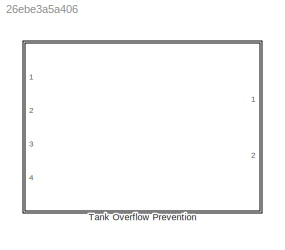
MODEL slx_26ebe3a5a406
KIND model
CONFIG AbsTol = auto
CONFIG EnableMultiTasking = on
CONFIG FixedStep = 0.002
CONFIG MaxStep = auto
CONFIG MinStep = auto
CONFIG RelTol = 1e-3
CONFIG SampleTimeConstraint = Unconstrained
CONFIG Solver = FixedStepAuto
CONFIG SolverName = FixedStepAuto
CONFIG StartTime = 0.0
CONFIG StopTime = inf
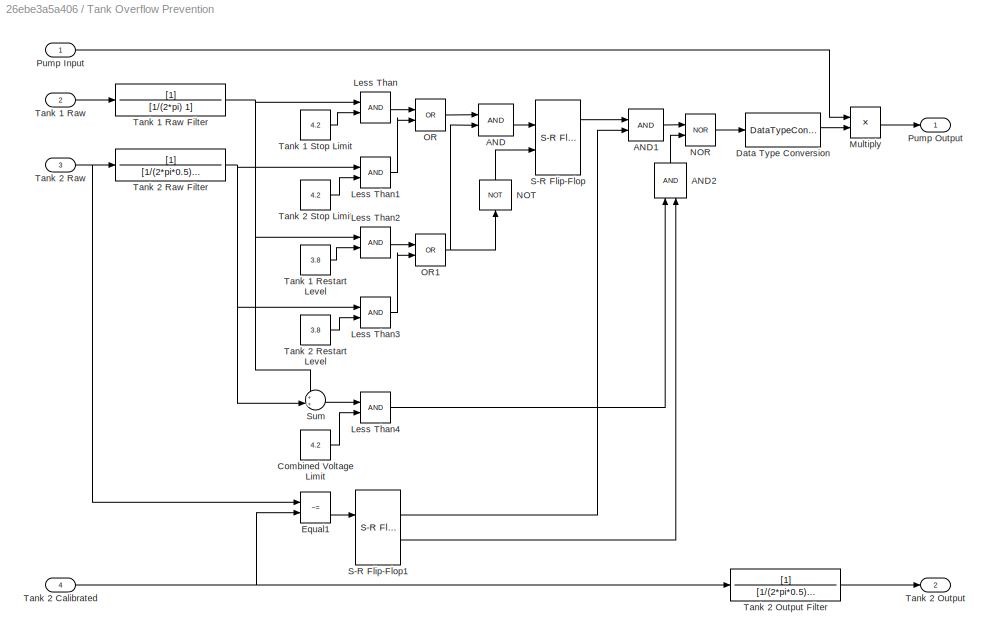
BLOCK [SubSystem] Tank Overflow Prevention
  Permissions = ReadOnly
  Ports = [4, 2]
  RequestExecContextInheritance = off
BLOCK [Logic] Tank Overflow Prevention/AND
  AllPortsSameDT = off
  IconShape = distinctive
  OutDataTypeStr = boolean
  Ports = [2, 1]
BLOCK [Logic] Tank Overflow Prevention/AND1
  AllPortsSameDT = off
  IconShape = distinctive
  OutDataTypeStr = boolean
  Ports = [2, 1]
BLOCK [Logic] Tank Overflow Prevention/AND2
  AllPortsSameDT = off
  IconShape = distinctive
  NameLocation = right
  OutDataTypeStr = boolean
  Ports = [2, 1]
BLOCK [Constant] Tank Overflow Prevention/Combined Voltage Limit
  Value = 4.2
BLOCK [DataTypeConversion] Tank Overflow Prevention/Data Type Conversion
  OutMax = [1]
  OutMin = [0]
  RndMeth = Floor
  SaturateOnIntegerOverflow = off
BLOCK [RelationalOperator] Tank Overflow Prevention/Equal1
  InputSameDT = off
  Operator = ~=
  OutDataTypeStr = boolean
  Ports = [2, 1]
  RndMeth = Simplest
BLOCK [RelationalOperator] Tank Overflow Prevention/Less Than
  InputSameDT = off
  Ports = [2, 1]
  RndMeth = Simplest
BLOCK [RelationalOperator] Tank Overflow Prevention/Less Than1
  InputSameDT = off
  Ports = [2, 1]
  RndMeth = Simplest
BLOCK [RelationalOperator] Tank Overflow Prevention/Less Than2
  InputSameDT = off
  Ports = [2, 1]
  RndMeth = Simplest
BLOCK [RelationalOperator] Tank Overflow Prevention/Less Than3
  InputSameDT = off
  Ports = [2, 1]
  RndMeth = Simplest
BLOCK [RelationalOperator] Tank Overflow Prevention/Less Than4
  InputSameDT = off
  Ports = [2, 1]
  RndMeth = Simplest
BLOCK [Product] Tank Overflow Prevention/Multiply
  Ports = [2, 1]
BLOCK [Logic] Tank Overflow Prevention/NOR
  AllPortsSameDT = off
  IconShape = distinctive
  Operator = NOR
  OutDataTypeStr = boolean
  Ports = [2, 1]
BLOCK [Logic] Tank Overflow Prevention/NOT
  AllPortsSameDT = off
  IconShape = distinctive
  NameLocation = right
  Operator = NOT
  OutDataTypeStr = boolean
  Ports = [1, 1]
BLOCK [Logic] Tank Overflow Prevention/OR
  AllPortsSameDT = off
  IconShape = distinctive
  Operator = OR
  OutDataTypeStr = boolean
  Ports = [2, 1]
BLOCK [Logic] Tank Overflow Prevention/OR1
  AllPortsSameDT = off
  IconShape = distinctive
  Operator = OR
  OutDataTypeStr = boolean
  Ports = [2, 1]
BLOCK [Inport] Tank Overflow Prevention/Pump Input
BLOCK [Outport] Tank Overflow Prevention/Pump Output
  VectorParamsAs1DForOutWhenUnconnected = off
BLOCK [Reference] Tank Overflow Prevention/S-R Flip-Flop  REF=simulink_extras/Flip Flops/S-R
Flip-Flop
  Ports = [2, 2]
  SourceBlock = simulink_extras/Flip Flops/S-R\nFlip-Flop
  SourceProductBaseCode = SL
  SourceType = SRFlipFlop
BLOCK [Reference] Tank Overflow Prevention/S-R Flip-Flop1  REF=simulink_extras/Flip Flops/S-R
Flip-Flop
  Ports = [2, 2]
  SourceBlock = simulink_extras/Flip Flops/S-R\nFlip-Flop
  SourceProductBaseCode = SL
  SourceType = SRFlipFlop
BLOCK [Sum] Tank Overflow Prevention/Sum
  Inputs = ++|
  Ports = [2, 1]
BLOCK [Inport] Tank Overflow Prevention/Tank 1 Raw
  Port = 2
BLOCK [TransferFcn] Tank Overflow Prevention/Tank 1 Raw Filter
  Denominator = [1/(2*pi) 1]
BLOCK [Constant] Tank Overflow Prevention/Tank 1 Restart Level
  Value = 3.8
BLOCK [Constant] Tank Overflow Prevention/Tank 1 Stop Limit
  Value = 4.2
BLOCK [Inport] Tank Overflow Prevention/Tank 2 Calibrated
  Port = 4
BLOCK [Outport] Tank Overflow Prevention/Tank 2 Output
  Port = 2
  VectorParamsAs1DForOutWhenUnconnected = off
BLOCK [TransferFcn] Tank Overflow Prevention/Tank 2 Output Filter
  Denominator = [1/(2*pi*0.5) 1]
BLOCK [Inport] Tank Overflow Prevention/Tank 2 Raw
  Port = 3
BLOCK [TransferFcn] Tank Overflow Prevention/Tank 2 Raw Filter
  Denominator = [1/(2*pi*0.5) 1]
BLOCK [Constant] Tank Overflow Prevention/Tank 2 Restart Level
  Value = 3.8
BLOCK [Constant] Tank Overflow Prevention/Tank 2 Stop Limit
  Value = 4.2
LINE Tank Overflow Prevention/AND1:1 -> Tank Overflow Prevention/NOR:1
LINE Tank Overflow Prevention/AND2:1 -> Tank Overflow Prevention/NOR:2
LINE Tank Overflow Prevention/AND:1 -> Tank Overflow Prevention/S-R Flip-Flop:1
LINE Tank Overflow Prevention/Combined Voltage Limit:1 -> Tank Overflow Prevention/Less Than4:2
LINE Tank Overflow Prevention/Data Type Conversion:1 -> Tank Overflow Prevention/Multiply:2
LINE Tank Overflow Prevention/Equal1:1 -> Tank Overflow Prevention/S-R Flip-Flop1:1
LINE Tank Overflow Prevention/Less Than1:1 -> Tank Overflow Prevention/OR:2
LINE Tank Overflow Prevention/Less Than2:1 -> Tank Overflow Prevention/OR1:1
LINE Tank Overflow Prevention/Less Than3:1 -> Tank Overflow Prevention/OR1:2
LINE Tank Overflow Prevention/Less Than4:1 -> Tank Overflow Prevention/AND2:1
LINE Tank Overflow Prevention/Less Than:1 -> Tank Overflow Prevention/OR:1
LINE Tank Overflow Prevention/Multiply:1 -> Tank Overflow Prevention/Pump Output:1
LINE Tank Overflow Prevention/NOR:1 -> Tank Overflow Prevention/Data Type Conversion:1
LINE Tank Overflow Prevention/NOT:1 -> Tank Overflow Prevention/S-R Flip-Flop:2
NET Tank Overflow Prevention/OR1:1 -> Tank Overflow Prevention/AND:2, Tank Overflow Prevention/NOT:1
LINE Tank Overflow Prevention/OR:1 -> Tank Overflow Prevention/AND:1
LINE Tank Overflow Prevention/Pump Input:1 -> Tank Overflow Prevention/Multiply:1
LINE Tank Overflow Prevention/S-R Flip-Flop1:1 -> Tank Overflow Prevention/AND1:2
LINE Tank Overflow Prevention/S-R Flip-Flop1:2 -> Tank Overflow Prevention/AND2:2
LINE Tank Overflow Prevention/S-R Flip-Flop:1 -> Tank Overflow Prevention/AND1:1
LINE Tank Overflow Prevention/Sum:1 -> Tank Overflow Prevention/Less Than4:1
NET Tank Overflow Prevention/Tank 1 Raw Filter:1 -> Tank Overflow Prevention/Less Than2:1, Tank Overflow Prevention/Less Than:1, Tank Overflow Prevention/Sum:1
LINE Tank Overflow Prevention/Tank 1 Raw:1 -> Tank Overflow Prevention/Tank 1 Raw Filter:1
LINE Tank Overflow Prevention/Tank 1 Restart Level:1 -> Tank Overflow Prevention/Less Than2:2
LINE Tank Overflow Prevention/Tank 1 Stop Limit:1 -> Tank Overflow Prevention/Less Than:2
NET Tank Overflow Prevention/Tank 2 Calibrated:1 -> Tank Overflow Prevention/Equal1:2, Tank Overflow Prevention/Tank 2 Output Filter:1
LINE Tank Overflow Prevention/Tank 2 Output Filter:1 -> Tank Overflow Prevention/Tank 2 Output:1
NET Tank Overflow Prevention/Tank 2 Raw Filter:1 -> Tank Overflow Prevention/Less Than1:1, Tank Overflow Prevention/Less Than3:1, Tank Overflow Prevention/Sum:2
NET Tank Overflow Prevention/Tank 2 Raw:1 -> Tank Overflow Prevention/Equal1:1, Tank Overflow Prevention/Tank 2 Raw Filter:1
LINE Tank Overflow Prevention/Tank 2 Restart Level:1 -> Tank Overflow Prevention/Less Than3:2
LINE Tank Overflow Prevention/Tank 2 Stop Limit:1 -> Tank Overflow Prevention/Less Than1:2
note: NET lines group one-source signal fan-out (src -> all destinations, sorted); 1:1 wires keep LINE
